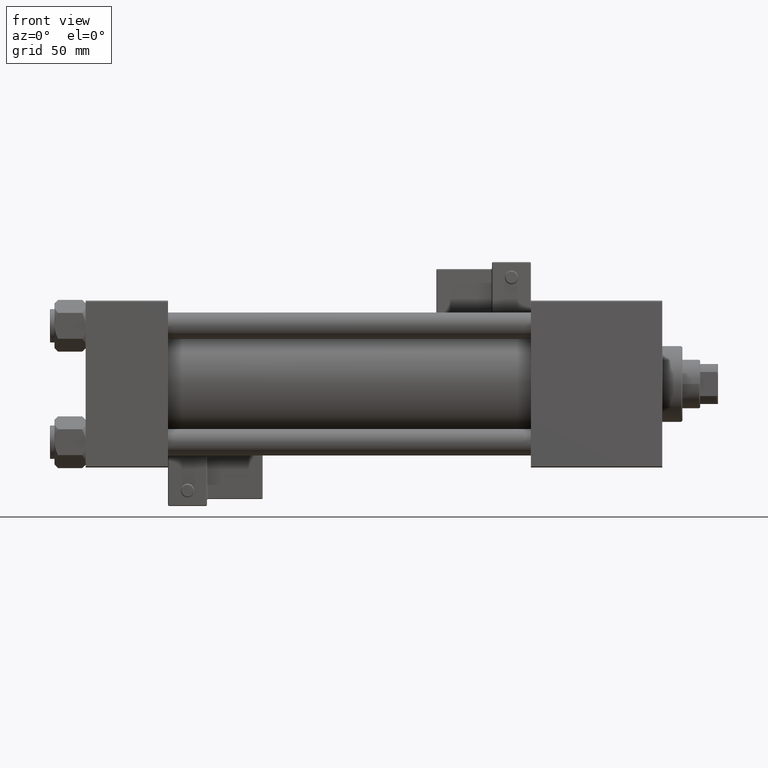
[diagram: clean part render]
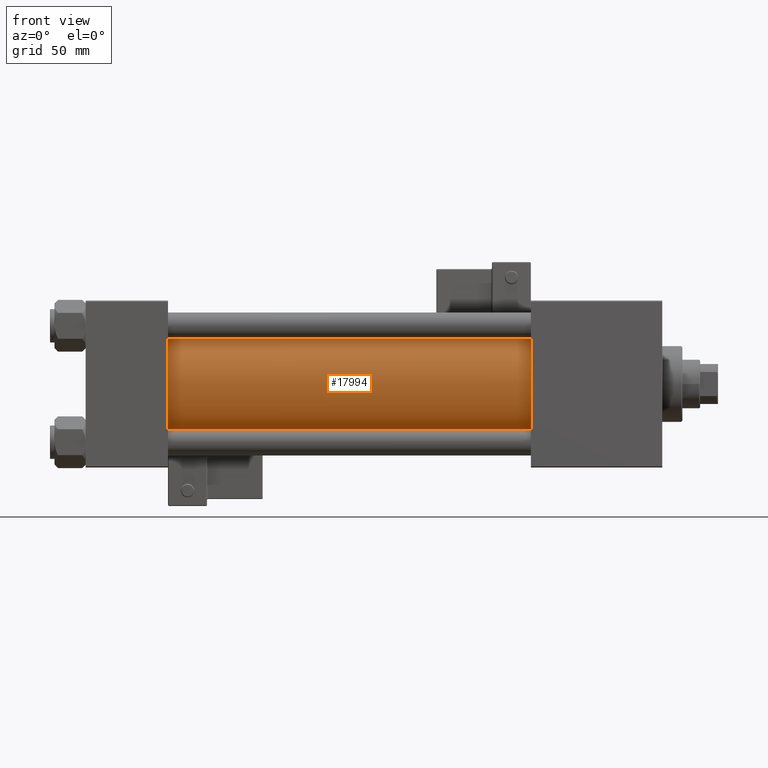
[diagram: same view with one face highlighted and labeled with its STEP entity id]
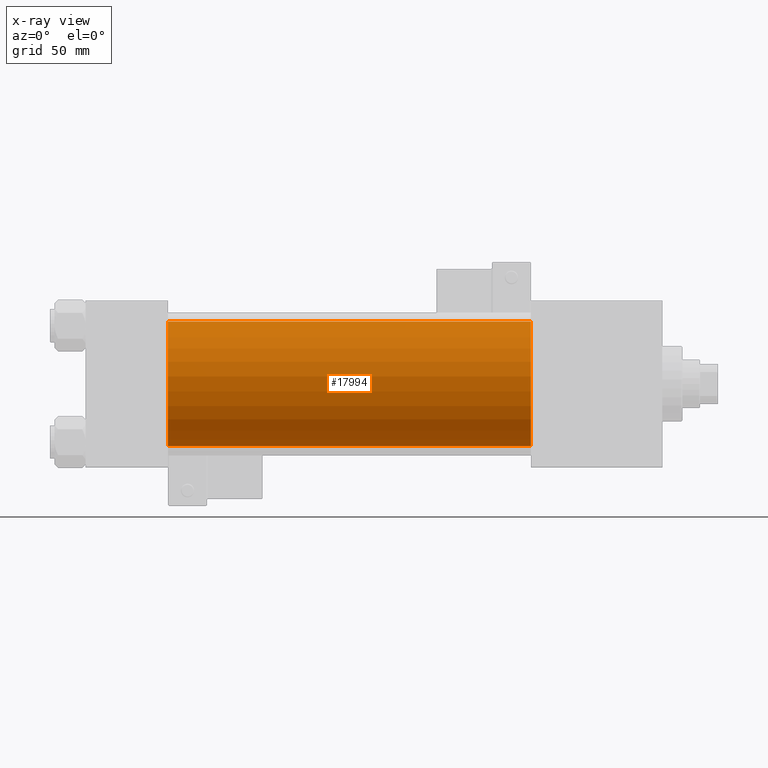
[diagram: x-ray of the same camera — body ghosted, the highlighted face saturated]
A machine part, front view. The second image highlights one B-rep face of the part: STEP entity #17994.
The next image is the same camera in x-ray: the body ghosted, the highlighted face saturated — about 0% of this face is hidden behind the body in this view.
In plain terms, the highlighted cylindrical surface (partial cylindrical patch) has radius 28 mm, axis along (-1, -0, -0).
Its self-contained STEP definition (entity closure, byte-faithful):
#754 = LINE ( 'NONE', #21724, #35718 ) ;
#1183 = LINE ( 'NONE', #9412, #39696 ) ;
#1265 = DIRECTION ( 'NONE',  ( -1.000000000000000000, -0.000000000000000000, -0.000000000000000000 ) ) ;
#3242 = AXIS2_PLACEMENT_3D ( 'NONE', #17598, #41255, #25302 ) ;
#6736 = ORIENTED_EDGE ( 'NONE', *, *, #43263, .F. ) ;
#9412 = CARTESIAN_POINT ( 'NONE',  ( 200.0000000000000000, 8.269258236473784371E-16, -28.00000000000000000 ) ) ;
#9805 = CARTESIAN_POINT ( 'NONE',  ( 200.0000000000000000, -2.602085213965210642E-15, 0.000000000000000000 ) ) ;
#10679 = ORIENTED_EDGE ( 'NONE', *, *, #15230, .T. ) ;
#11459 = ORIENTED_EDGE ( 'NONE', *, *, #17633, .F. ) ;
#15230 = EDGE_CURVE ( 'NONE', #32404, #47756, #754, .T. ) ;
#16334 = VERTEX_POINT ( 'NONE', #42746 ) ;
#17598 = CARTESIAN_POINT ( 'NONE',  ( 37.00000000000000711, -2.602085213965210642E-15, 0.000000000000000000 ) ) ;
#17633 = EDGE_CURVE ( 'NONE', #32404, #41435, #28173, .T. ) ;
#17737 = FACE_OUTER_BOUND ( 'NONE', #23250, .T. ) ;
#17994 = ADVANCED_FACE ( 'NONE', ( #17737 ), #26230, .T. ) ;
#19637 = CARTESIAN_POINT ( 'NONE',  ( 37.00000000000000711, -2.602085213965210642E-15, 28.00000000000000000 ) ) ;
#21181 = DIRECTION ( 'NONE',  ( 0.000000000000000000, 0.000000000000000000, 1.000000000000000000 ) ) ;
#21724 = CARTESIAN_POINT ( 'NONE',  ( 200.0000000000000000, -2.602085213965210642E-15, 28.00000000000000000 ) ) ;
#23250 = EDGE_LOOP ( 'NONE', ( #6736, #11459, #10679, #31782 ) ) ;
#25302 = DIRECTION ( 'NONE',  ( 0.000000000000000000, 0.000000000000000000, 1.000000000000000000 ) ) ;
#26230 = CYLINDRICAL_SURFACE ( 'NONE', #31580, 28.00000000000000000 ) ;
#28173 = CIRCLE ( 'NONE', #33255, 28.00000000000000000 ) ;
#28830 = DIRECTION ( 'NONE',  ( -1.000000000000000000, -0.000000000000000000, -0.000000000000000000 ) ) ;
#30416 = CIRCLE ( 'NONE', #3242, 28.00000000000000000 ) ;
#31234 = DIRECTION ( 'NONE',  ( 1.000000000000000000, 0.000000000000000000, 0.000000000000000000 ) ) ;
#31580 = AXIS2_PLACEMENT_3D ( 'NONE', #45898, #1265, #21181 ) ;
#31782 = ORIENTED_EDGE ( 'NONE', *, *, #44319, .T. ) ;
#32404 = VERTEX_POINT ( 'NONE', #36000 ) ;
#33255 = AXIS2_PLACEMENT_3D ( 'NONE', #9805, #31234, #35227 ) ;
#35227 = DIRECTION ( 'NONE',  ( 0.000000000000000000, 0.000000000000000000, -1.000000000000000000 ) ) ;
#35718 = VECTOR ( 'NONE', #37161, 1000.000000000000000 ) ;
#36000 = CARTESIAN_POINT ( 'NONE',  ( 200.0000000000000000, -2.602085213965210642E-15, 28.00000000000000000 ) ) ;
#37161 = DIRECTION ( 'NONE',  ( -1.000000000000000000, -0.000000000000000000, -0.000000000000000000 ) ) ;
#38235 = CARTESIAN_POINT ( 'NONE',  ( 200.0000000000000000, 8.269258236473784371E-16, -28.00000000000000000 ) ) ;
#39696 = VECTOR ( 'NONE', #28830, 1000.000000000000000 ) ;
#41255 = DIRECTION ( 'NONE',  ( 1.000000000000000000, -0.000000000000000000, 0.000000000000000000 ) ) ;
#41435 = VERTEX_POINT ( 'NONE', #38235 ) ;
#42746 = CARTESIAN_POINT ( 'NONE',  ( 37.00000000000000711, 8.269258236473784371E-16, -28.00000000000000000 ) ) ;
#43263 = EDGE_CURVE ( 'NONE', #41435, #16334, #1183, .T. ) ;
#44319 = EDGE_CURVE ( 'NONE', #47756, #16334, #30416, .T. ) ;
#45898 = CARTESIAN_POINT ( 'NONE',  ( 200.0000000000000000, -2.602085213965210642E-15, 0.000000000000000000 ) ) ;
#47756 = VERTEX_POINT ( 'NONE', #19637 ) ;